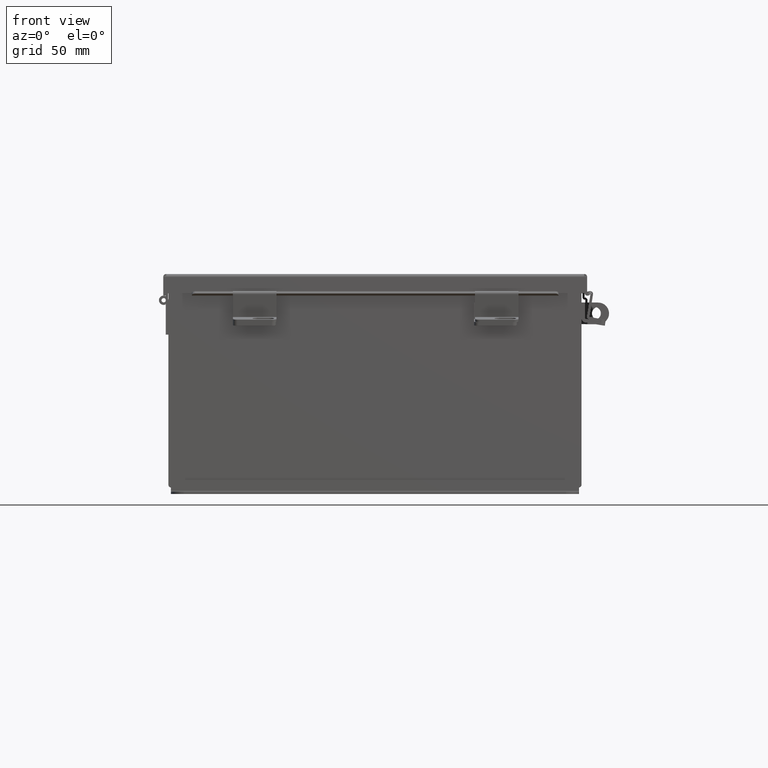
[diagram: clean part render]
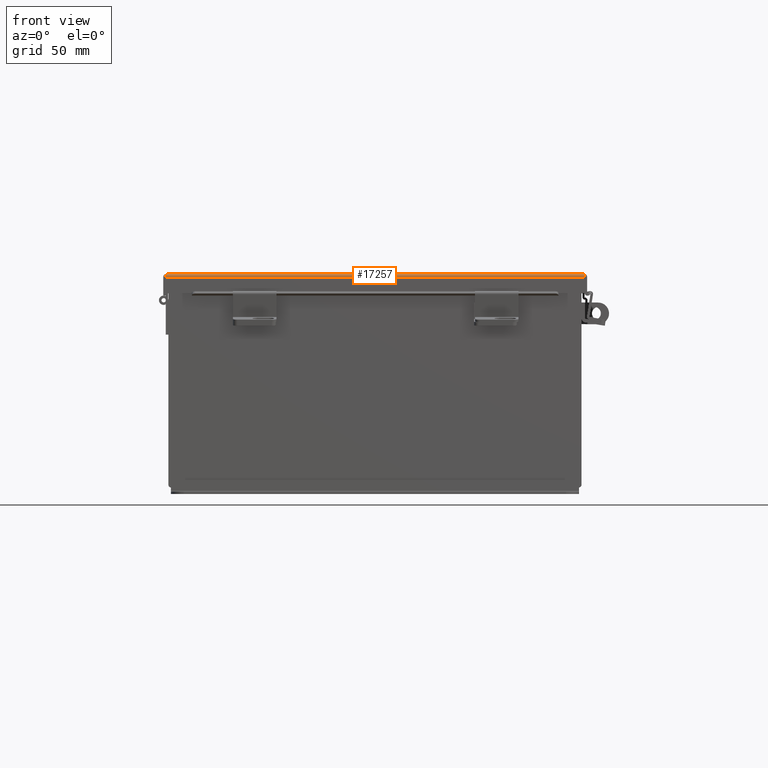
[diagram: same view with one face highlighted and labeled with its STEP entity id]
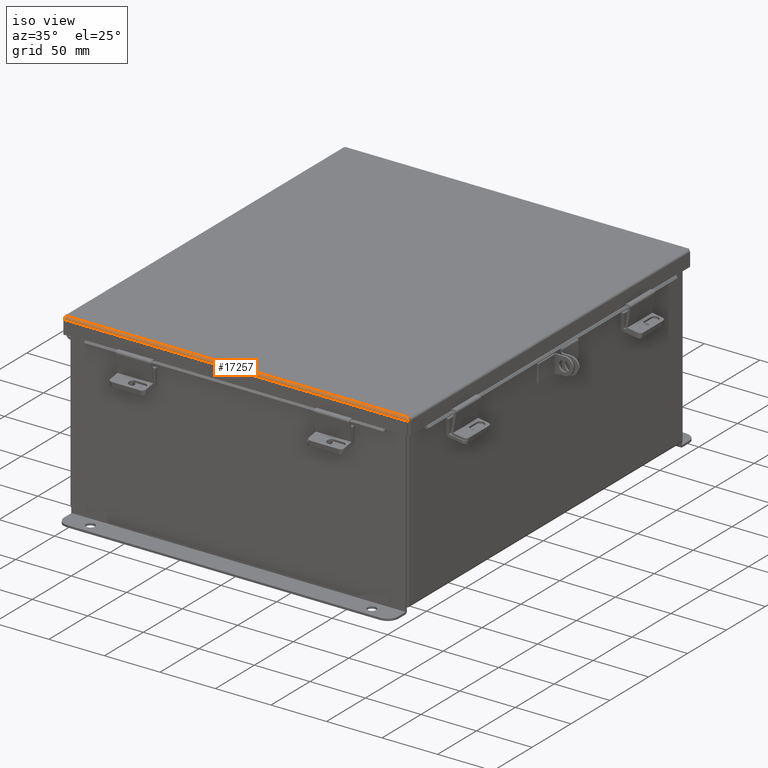
[diagram: same view with one face highlighted and labeled with its STEP entity id]
A machine part, front view. The second image highlights one B-rep face of the part: STEP entity #17257.
A second angle (iso view) of the same face is appended — the face is thin or edge-on in the first view.
In plain terms, the highlighted cylindrical surface (edge-blend (fillet) strip) has radius 2.2276 mm, axis along (-1, 0, -0).
Its self-contained STEP definition (entity closure, byte-faithful):
#852 = EDGE_CURVE ( 'NONE', #16379, #6703, #15945, .T. ) ;
#1180 = B_SPLINE_CURVE_WITH_KNOTS ( 'NONE', 3,
 ( #9563, #18175, #11004, #2421, #12450, #3859, #13870, #5320, #15332, #6748 ),
 .UNSPECIFIED., .F., .F.,
 ( 4, 2, 2, 2, 4 ),
 ( 0.0000000000000000000, 0.2500000000000000000, 0.5000000000000000000, 0.7500000000000000000, 1.000000000000000000 ),
 .UNSPECIFIED. ) ;
#1256 = CARTESIAN_POINT ( 'NONE',  ( -6.156249999999998200, -7.156250000000001800, 0.01299999999999978100 ) ) ;
#1471 = CARTESIAN_POINT ( 'NONE',  ( 6.074478932188137400, -7.156250000000001800, 0.01299999999999978100 ) ) ;
#1544 = VERTEX_POINT ( 'NONE', #1471 ) ;
#1758 = ORIENTED_EDGE ( 'NONE', *, *, #14532, .F. ) ;
#1777 = AXIS2_PLACEMENT_3D ( 'NONE', #5417, #3969, #6848 ) ;
#2366 = EDGE_LOOP ( 'NONE', ( #1758, #17464, #7815, #18364 ) ) ;
#2421 = CARTESIAN_POINT ( 'NONE',  ( 6.072502621458756500, -7.145181066258667900, -0.03116738457852799900 ) ) ;
#3551 = CARTESIAN_POINT ( 'NONE',  ( -6.068550000000000100, -7.068550000000001000, -0.07470000000000107100 ) ) ;
#3799 = CARTESIAN_POINT ( 'NONE',  ( 6.074478932188137400, -7.068550000000001000, -0.07469999999999993300 ) ) ;
#3859 = CARTESIAN_POINT ( 'NONE',  ( 6.071020388411725800, -7.122445747341799900, -0.05713078207832041800 ) ) ;
#3957 = CARTESIAN_POINT ( 'NONE',  ( -6.074478932188134700, -7.156250000000001800, 0.01299999999999977400 ) ) ;
#3969 = DIRECTION ( 'NONE',  ( 1.000000000000000000, -0.0000000000000000000, -0.0000000000000000000 ) ) ;
#4888 = VERTEX_POINT ( 'NONE', #5035 ) ;
#4984 = CARTESIAN_POINT ( 'NONE',  ( -6.071020388411723100, -7.122445747341800800, -0.05713078207832041800 ) ) ;
#5035 = CARTESIAN_POINT ( 'NONE',  ( 6.068550000000000100, -7.068550000000001000, -0.07469999999999993300 ) ) ;
#5320 = CARTESIAN_POINT ( 'NONE',  ( 6.069538155364689700, -7.091505289458312200, -0.07241740374381121200 ) ) ;
#5417 = CARTESIAN_POINT ( 'NONE',  ( 6.074478932188137400, -7.068550000000001000, 0.01300000000000016400 ) ) ;
#6372 = CARTESIAN_POINT ( 'NONE',  ( -6.069538155364690500, -7.091505289458312200, -0.07241740374381121200 ) ) ;
#6434 = CARTESIAN_POINT ( 'NONE',  ( -6.072502621458756500, -7.145181066258669700, -0.03116738457852800300 ) ) ;
#6540 = FACE_OUTER_BOUND ( 'NONE', #2366, .T. ) ;
#6703 = VERTEX_POINT ( 'NONE', #3957 ) ;
#6748 = CARTESIAN_POINT ( 'NONE',  ( 6.068550000000000100, -7.068550000000001000, -0.07469999999999993300 ) ) ;
#6848 = DIRECTION ( 'NONE',  ( 0.0000000000000000000, -1.000000000000000000, -4.477801015840783100E-015 ) ) ;
#7214 = EDGE_CURVE ( 'NONE', #1544, #6703, #17567, .T. ) ;
#7815 = ORIENTED_EDGE ( 'NONE', *, *, #7214, .T. ) ;
#7818 = CARTESIAN_POINT ( 'NONE',  ( -6.069044077682344000, -7.080029903154994900, -0.07469999999999994700 ) ) ;
#7873 = CARTESIAN_POINT ( 'NONE',  ( -6.073984854505790800, -7.156250000000001800, 0.001520096845007091700 ) ) ;
#8736 = EDGE_CURVE ( 'NONE', #1544, #4888, #1180, .T. ) ;
#9563 = CARTESIAN_POINT ( 'NONE',  ( 6.074478932188137400, -7.156250000000001800, 0.01299999999999978100 ) ) ;
#9876 = DIRECTION ( 'NONE',  ( -1.000000000000000000, 2.487713722829918300E-032, 1.089533968265403200E-046 ) ) ;
#9930 = VECTOR ( 'NONE', #9876, 39.37007874015748100 ) ;
#10506 = CARTESIAN_POINT ( 'NONE',  ( -6.068550000000000100, -7.068550000000001000, -0.07470000000000107100 ) ) ;
#11004 = CARTESIAN_POINT ( 'NONE',  ( 6.073490776823450500, -7.153967403743812300, -0.009955289458309056500 ) ) ;
#12376 = DIRECTION ( 'NONE',  ( -1.000000000000000000, 0.0000000000000000000, 0.0000000000000000000 ) ) ;
#12450 = CARTESIAN_POINT ( 'NONE',  ( 6.072008543776413500, -7.138680782078322000, -0.04089574734180010500 ) ) ;
#13533 = CARTESIAN_POINT ( 'NONE',  ( -6.070526310729377400, -7.112717384578527200, -0.06363106625866835100 ) ) ;
#13739 = VECTOR ( 'NONE', #12376, 39.37007874015748100 ) ;
#13870 = CARTESIAN_POINT ( 'NONE',  ( 6.070526310729379200, -7.112717384578529000, -0.06363106625866837800 ) ) ;
#14532 = EDGE_CURVE ( 'NONE', #4888, #16379, #17597, .T. ) ;
#15012 = CARTESIAN_POINT ( 'NONE',  ( -6.072008543776412600, -7.138680782078324700, -0.04089574734180011200 ) ) ;
#15332 = CARTESIAN_POINT ( 'NONE',  ( 6.069044077682344900, -7.080029903154994900, -0.07469999999999994700 ) ) ;
#15945 = B_SPLINE_CURVE_WITH_KNOTS ( 'NONE', 3,
 ( #3551, #7818, #6372, #13533, #4984, #15012, #6434, #16450, #7873, #17916 ),
 .UNSPECIFIED., .F., .F.,
 ( 4, 2, 2, 2, 4 ),
 ( 0.0000000000000000000, 0.2500000000000000000, 0.5000000000000000000, 0.7500000000000000000, 1.000000000000000000 ),
 .UNSPECIFIED. ) ;
#16379 = VERTEX_POINT ( 'NONE', #10506 ) ;
#16450 = CARTESIAN_POINT ( 'NONE',  ( -6.073490776823446100, -7.153967403743814100, -0.009955289458309054700 ) ) ;
#17257 = ADVANCED_FACE ( 'NONE', ( #6540 ), #17535, .T. ) ;
#17464 = ORIENTED_EDGE ( 'NONE', *, *, #8736, .F. ) ;
#17535 = CYLINDRICAL_SURFACE ( 'NONE', #1777, 0.08770000000000026400 ) ;
#17567 = LINE ( 'NONE', #1256, #9930 ) ;
#17597 = LINE ( 'NONE', #3799, #13739 ) ;
#17916 = CARTESIAN_POINT ( 'NONE',  ( -6.074478932188134700, -7.156250000000001800, 0.01299999999999977400 ) ) ;
#18175 = CARTESIAN_POINT ( 'NONE',  ( 6.073984854505791700, -7.156250000000002700, 0.001520096845007091700 ) ) ;
#18364 = ORIENTED_EDGE ( 'NONE', *, *, #852, .F. ) ;